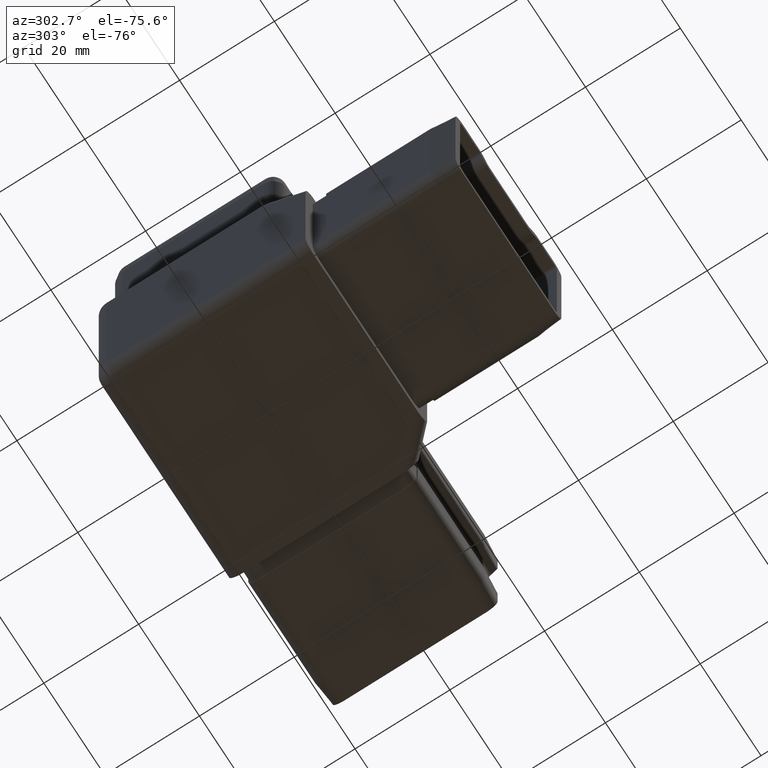
[diagram: clean part render]
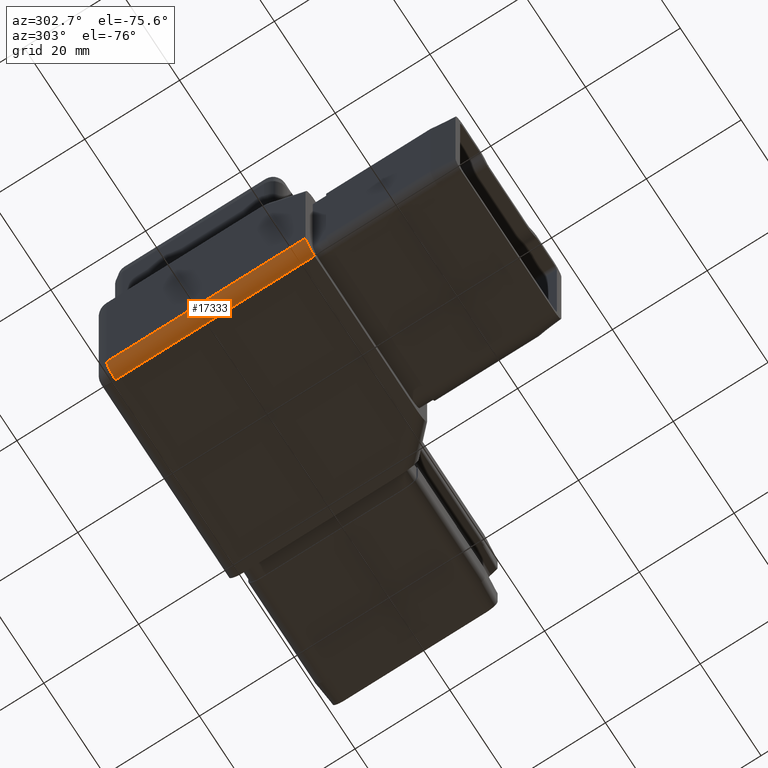
[diagram: same view with one face highlighted and labeled with its STEP entity id]
A machine part, auxiliary view. The second image highlights one B-rep face of the part: STEP entity #17333.
In plain terms, the highlighted cylindrical surface (edge-blend (fillet) strip) has radius 3 mm, axis along (0, -1, 0).
Its self-contained STEP definition (entity closure, byte-faithful):
#61 = VERTEX_POINT ( 'NONE', #10312 ) ;
#153 = EDGE_CURVE ( 'NONE', #8187, #10578, #10374, .T. ) ;
#179 = CARTESIAN_POINT ( 'NONE',  ( -19.50000000000000000, 22.49999999999999600, -19.49999999999999600 ) ) ;
#509 = AXIS2_PLACEMENT_3D ( 'NONE', #179, #10264, #6040 ) ;
#3010 = DIRECTION ( 'NONE',  ( 1.541976423090495400E-016, -1.000000000000000000, 0.0000000000000000000 ) ) ;
#3389 = CARTESIAN_POINT ( 'NONE',  ( -19.49999999999999300, -22.50000000000000400, -22.50000000000000000 ) ) ;
#3829 = DIRECTION ( 'NONE',  ( 0.0000000000000000000, 0.0000000000000000000, 1.000000000000000000 ) ) ;
#4875 = LINE ( 'NONE', #5909, #6693 ) ;
#4880 = ORIENTED_EDGE ( 'NONE', *, *, #13288, .F. ) ;
#5790 = CARTESIAN_POINT ( 'NONE',  ( -19.50000000000000000, 19.49999999999999600, -22.50000000000000000 ) ) ;
#5909 = CARTESIAN_POINT ( 'NONE',  ( -22.50000000000000000, 22.49999999999999600, -19.49999999999999600 ) ) ;
#6040 = DIRECTION ( 'NONE',  ( 1.000000000000000000, 0.0000000000000000000, 0.0000000000000000000 ) ) ;
#6328 = ORIENTED_EDGE ( 'NONE', *, *, #9425, .T. ) ;
#6693 = VECTOR ( 'NONE', #3010, 1000.000000000000000 ) ;
#7268 = FACE_OUTER_BOUND ( 'NONE', #17204, .T. ) ;
#7934 = CYLINDRICAL_SURFACE ( 'NONE', #509, 2.999999999999999100 ) ;
#8187 = VERTEX_POINT ( 'NONE', #15358 ) ;
#9048 = AXIS2_PLACEMENT_3D ( 'NONE', #12410, #16886, #3829 ) ;
#9356 = ORIENTED_EDGE ( 'NONE', *, *, #14128, .F. ) ;
#9425 = EDGE_CURVE ( 'NONE', #61, #17118, #10230, .T. ) ;
#9579 = DIRECTION ( 'NONE',  ( -1.541976423090495400E-016, 1.000000000000000000, -0.0000000000000000000 ) ) ;
#10152 = AXIS2_PLACEMENT_3D ( 'NONE', #16680, #10816, #16610 ) ;
#10230 = CIRCLE ( 'NONE', #9048, 2.999999999999999100 ) ;
#10264 = DIRECTION ( 'NONE',  ( 1.541976423090495400E-016, -1.000000000000000000, 0.0000000000000000000 ) ) ;
#10312 = CARTESIAN_POINT ( 'NONE',  ( -22.50000000000000000, 19.49999999999999600, -19.49999999999999600 ) ) ;
#10374 = CIRCLE ( 'NONE', #10152, 2.999999999999999100 ) ;
#10578 = VERTEX_POINT ( 'NONE', #3389 ) ;
#10816 = DIRECTION ( 'NONE',  ( -0.0000000000000000000, -1.000000000000000000, -0.0000000000000000000 ) ) ;
#12410 = CARTESIAN_POINT ( 'NONE',  ( -19.50000000000000000, 19.49999999999999600, -19.50000000000000000 ) ) ;
#13271 = LINE ( 'NONE', #15293, #13716 ) ;
#13288 = EDGE_CURVE ( 'NONE', #10578, #17118, #13271, .T. ) ;
#13716 = VECTOR ( 'NONE', #9579, 1000.000000000000000 ) ;
#14128 = EDGE_CURVE ( 'NONE', #61, #8187, #4875, .T. ) ;
#15035 = ORIENTED_EDGE ( 'NONE', *, *, #153, .F. ) ;
#15293 = CARTESIAN_POINT ( 'NONE',  ( -19.49999999999999600, -3.006854025026465500E-015, -22.50000000000000000 ) ) ;
#15358 = CARTESIAN_POINT ( 'NONE',  ( -22.49999999999999300, -22.50000000000000400, -19.49999999999998200 ) ) ;
#16610 = DIRECTION ( 'NONE',  ( 0.0000000000000000000, 0.0000000000000000000, 1.000000000000000000 ) ) ;
#16680 = CARTESIAN_POINT ( 'NONE',  ( -19.49999999999999300, -22.50000000000000400, -19.49999999999999600 ) ) ;
#16886 = DIRECTION ( 'NONE',  ( -0.0000000000000000000, -1.000000000000000000, -0.0000000000000000000 ) ) ;
#17118 = VERTEX_POINT ( 'NONE', #5790 ) ;
#17204 = EDGE_LOOP ( 'NONE', ( #6328, #4880, #15035, #9356 ) ) ;
#17333 = ADVANCED_FACE ( 'NONE', ( #7268 ), #7934, .T. ) ;